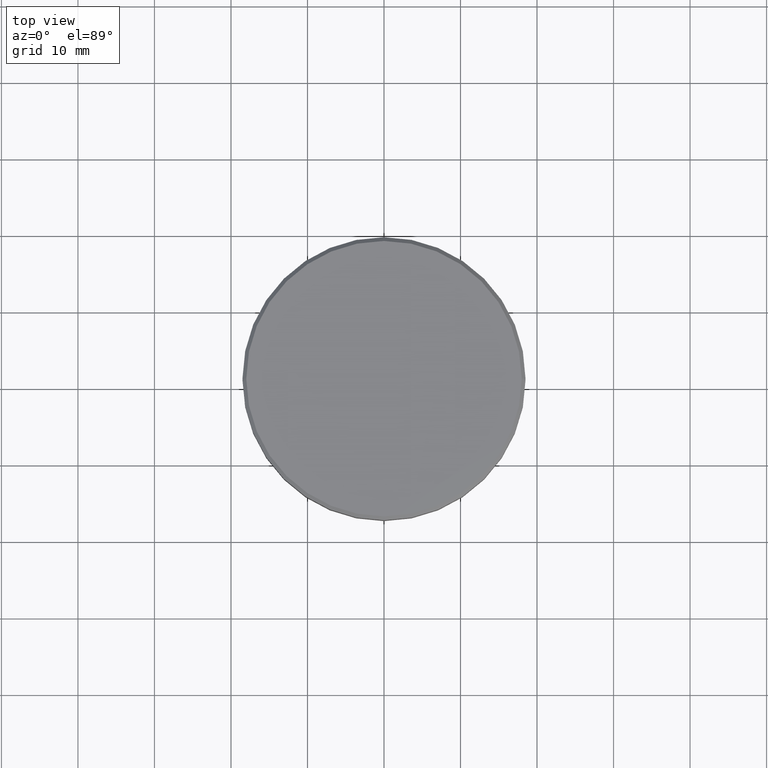
[diagram: clean part render]
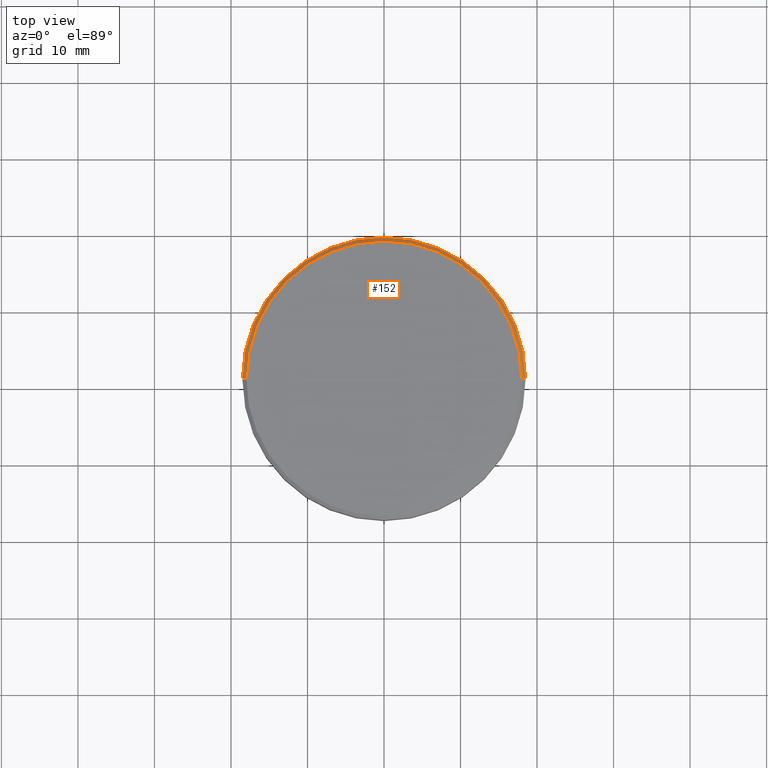
[diagram: same view with one face highlighted and labeled with its STEP entity id]
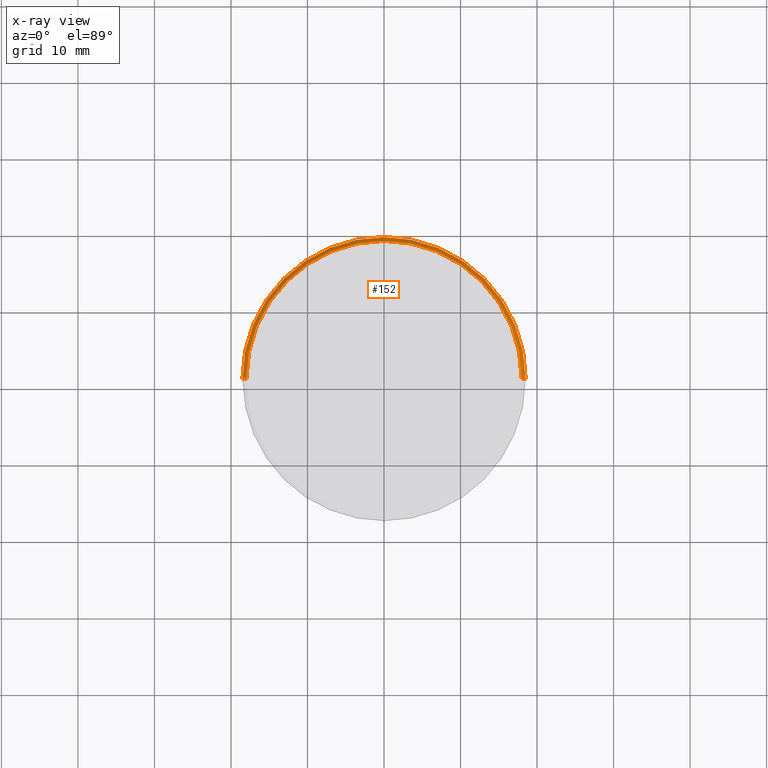
[diagram: x-ray of the same camera — body ghosted, the highlighted face saturated]
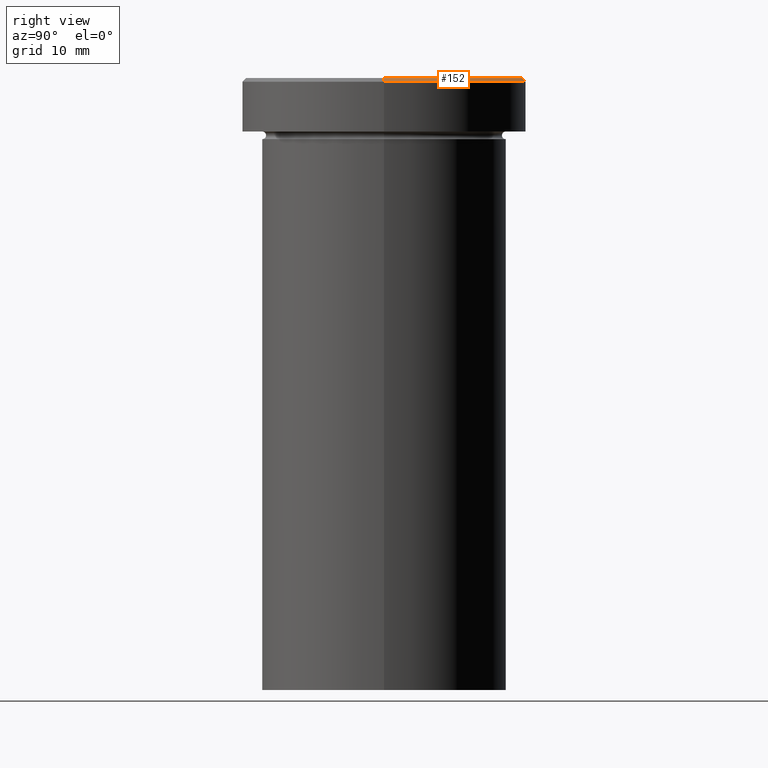
[diagram: same view with one face highlighted and labeled with its STEP entity id]
A machine part, top view. The second image highlights one B-rep face of the part: STEP entity #152.
The next image is the same camera in x-ray: the body ghosted, the highlighted face saturated — about 0% of this face is hidden behind the body in this view.
A second angle (right view) of the same face is appended — the face is thin or edge-on in the first view.
In plain terms, the highlighted conical surface has half-angle 45 deg.
Its self-contained STEP definition (entity closure, byte-faithful):
#1 = CARTESIAN_POINT ( 'NONE',  ( 0.000000000000000000, 0.000000000000000000, 0.000000000000000000 ) ) ;
#2 = VERTEX_POINT ( 'NONE', #41 ) ;
#12 = CARTESIAN_POINT ( 'NONE',  ( 0.000000000000000000, 0.000000000000000000, -0.5000000000000213163 ) ) ;
#15 = DIRECTION ( 'NONE',  ( -0.7071067811865402453, 0.000000000000000000, -0.7071067811865549002 ) ) ;
#39 = DIRECTION ( 'NONE',  ( 1.000000000000000000, 0.000000000000000000, 0.000000000000000000 ) ) ;
#41 = CARTESIAN_POINT ( 'NONE',  ( -18.50000000000000000, 2.265596578422603396E-15, -0.5000000000000213163 ) ) ;
#49 = EDGE_CURVE ( 'NONE', #135, #213, #62, .T. ) ;
#53 = CONICAL_SURFACE ( 'NONE', #399, 17.99999999999998934, 0.7853981633974380649 ) ;
#62 = CIRCLE ( 'NONE', #220, 17.99999999999998934 ) ;
#100 = CIRCLE ( 'NONE', #332, 18.50000000000000000 ) ;
#116 = VECTOR ( 'NONE', #168, 1000.000000000000114 ) ;
#127 = VECTOR ( 'NONE', #15, 1000.000000000000114 ) ;
#130 = ORIENTED_EDGE ( 'NONE', *, *, #224, .F. ) ;
#132 = DIRECTION ( 'NONE',  ( 0.000000000000000000, 0.000000000000000000, -1.000000000000000000 ) ) ;
#133 = LINE ( 'NONE', #360, #127 ) ;
#135 = VERTEX_POINT ( 'NONE', #286 ) ;
#152 = ADVANCED_FACE ( 'NONE', ( #317 ), #53, .T. ) ;
#157 = ORIENTED_EDGE ( 'NONE', *, *, #49, .F. ) ;
#167 = LINE ( 'NONE', #300, #116 ) ;
#168 = DIRECTION ( 'NONE',  ( 0.7071067811865402453, 8.659560562354844111E-17, -0.7071067811865549002 ) ) ;
#180 = EDGE_CURVE ( 'NONE', #135, #270, #167, .T. ) ;
#213 = VERTEX_POINT ( 'NONE', #323 ) ;
#220 = AXIS2_PLACEMENT_3D ( 'NONE', #1, #355, #39 ) ;
#224 = EDGE_CURVE ( 'NONE', #2, #270, #100, .T. ) ;
#254 = EDGE_LOOP ( 'NONE', ( #157, #342, #130, #292 ) ) ;
#270 = VERTEX_POINT ( 'NONE', #402 ) ;
#286 = CARTESIAN_POINT ( 'NONE',  ( 17.99999999999998934, 2.234980408443918820E-15, 0.000000000000000000 ) ) ;
#292 = ORIENTED_EDGE ( 'NONE', *, *, #361, .F. ) ;
#300 = CARTESIAN_POINT ( 'NONE',  ( 17.99999999999998934, 2.204364238465234244E-15, 0.000000000000000000 ) ) ;
#317 = FACE_OUTER_BOUND ( 'NONE', #254, .T. ) ;
#323 = CARTESIAN_POINT ( 'NONE',  ( -17.99999999999998934, 0.000000000000000000, 0.000000000000000000 ) ) ;
#332 = AXIS2_PLACEMENT_3D ( 'NONE', #12, #132, #391 ) ;
#342 = ORIENTED_EDGE ( 'NONE', *, *, #180, .T. ) ;
#353 = CARTESIAN_POINT ( 'NONE',  ( 0.000000000000000000, 0.000000000000000000, 0.000000000000000000 ) ) ;
#355 = DIRECTION ( 'NONE',  ( -0.000000000000000000, -0.000000000000000000, 1.000000000000000000 ) ) ;
#360 = CARTESIAN_POINT ( 'NONE',  ( -17.99999999999998934, 0.000000000000000000, 0.000000000000000000 ) ) ;
#361 = EDGE_CURVE ( 'NONE', #213, #2, #133, .T. ) ;
#379 = DIRECTION ( 'NONE',  ( 0.000000000000000000, 0.000000000000000000, -1.000000000000000000 ) ) ;
#386 = DIRECTION ( 'NONE',  ( -1.000000000000000000, 0.000000000000000000, 0.000000000000000000 ) ) ;
#391 = DIRECTION ( 'NONE',  ( 1.000000000000000000, 0.000000000000000000, 0.000000000000000000 ) ) ;
#399 = AXIS2_PLACEMENT_3D ( 'NONE', #353, #379, #386 ) ;
#402 = CARTESIAN_POINT ( 'NONE',  ( 18.50000000000000000, 0.000000000000000000, -0.5000000000000213163 ) ) ;